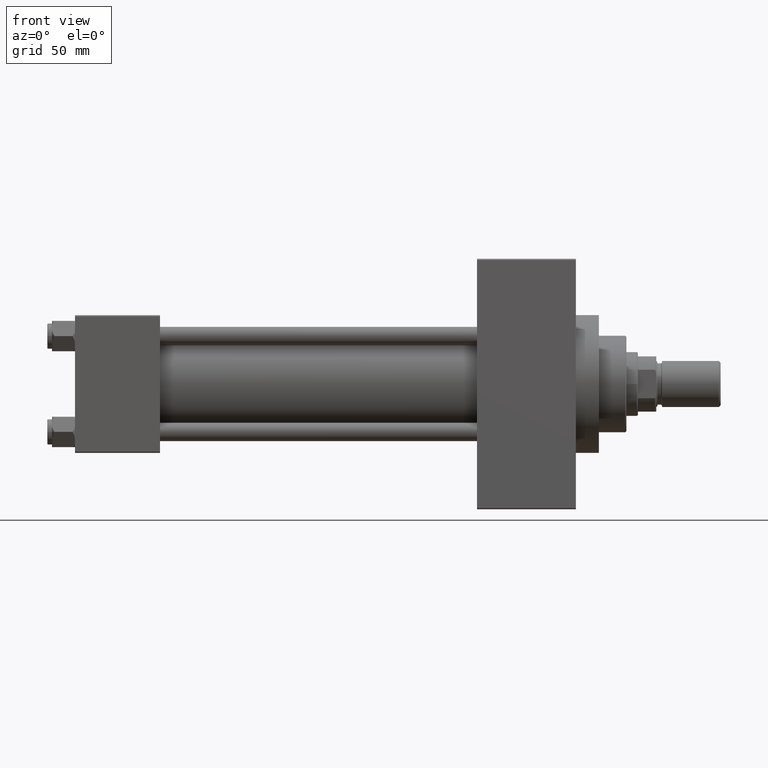
[diagram: clean part render]
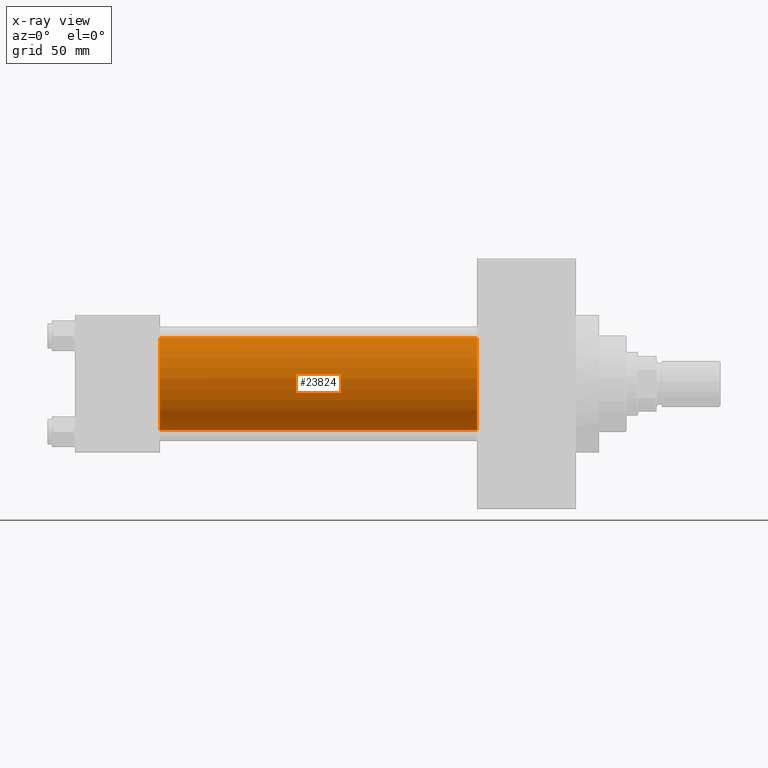
[diagram: x-ray — body ghosted, one internal face saturated and labeled with its STEP entity id]
A machine part, front view, then the same camera in x-ray: the body is ghosted and one INTERNAL B-rep face — a face not visible from any outside direction — is saturated and labeled: STEP entity #23824.
In plain terms, the highlighted cylindrical surface (partial cylindrical patch) has radius 20 mm, axis along (-1, -0, -0).
Its self-contained STEP definition (entity closure, byte-faithful):
#1944 = ORIENTED_EDGE ( 'NONE', *, *, #2814, .F. ) ;
#2814 = EDGE_CURVE ( 'NONE', #18475, #27763, #36919, .T. ) ;
#4686 = CARTESIAN_POINT ( 'NONE',  ( 175.0000000000000284, -2.602085213965210642E-15, 20.00000000000000000 ) ) ;
#6768 = EDGE_CURVE ( 'NONE', #35752, #27763, #11559, .T. ) ;
#7972 = CARTESIAN_POINT ( 'NONE',  ( 175.0000000000000284, -2.602085213965210642E-15, 0.000000000000000000 ) ) ;
#10857 = CARTESIAN_POINT ( 'NONE',  ( 37.00000000000000000, -2.602085213965210642E-15, 20.00000000000000000 ) ) ;
#11559 = LINE ( 'NONE', #40503, #17698 ) ;
#11671 = LINE ( 'NONE', #4686, #36539 ) ;
#14293 = DIRECTION ( 'NONE',  ( 0.000000000000000000, 0.000000000000000000, -1.000000000000000000 ) ) ;
#14488 = DIRECTION ( 'NONE',  ( 1.000000000000000000, 0.000000000000000000, 0.000000000000000000 ) ) ;
#16007 = DIRECTION ( 'NONE',  ( -1.000000000000000000, -0.000000000000000000, -0.000000000000000000 ) ) ;
#17126 = EDGE_CURVE ( 'NONE', #17949, #18475, #11671, .T. ) ;
#17698 = VECTOR ( 'NONE', #21937, 1000.000000000000000 ) ;
#17949 = VERTEX_POINT ( 'NONE', #27115 ) ;
#18341 = CARTESIAN_POINT ( 'NONE',  ( 175.0000000000000284, -1.527916156705042519E-16, -20.00000000000000000 ) ) ;
#18475 = VERTEX_POINT ( 'NONE', #10857 ) ;
#19590 = ORIENTED_EDGE ( 'NONE', *, *, #35841, .T. ) ;
#21937 = DIRECTION ( 'NONE',  ( -1.000000000000000000, -0.000000000000000000, -0.000000000000000000 ) ) ;
#22924 = AXIS2_PLACEMENT_3D ( 'NONE', #32502, #28885, #43597 ) ;
#23824 = ADVANCED_FACE ( 'NONE', ( #39968 ), #43360, .F. ) ;
#24466 = EDGE_LOOP ( 'NONE', ( #19590, #30465, #1944, #43989 ) ) ;
#25387 = DIRECTION ( 'NONE',  ( 1.000000000000000000, 0.000000000000000000, 0.000000000000000000 ) ) ;
#27115 = CARTESIAN_POINT ( 'NONE',  ( 175.0000000000000284, -2.602085213965210642E-15, 20.00000000000000000 ) ) ;
#27763 = VERTEX_POINT ( 'NONE', #38738 ) ;
#28779 = CARTESIAN_POINT ( 'NONE',  ( 37.00000000000000000, -2.602085213965210642E-15, 0.000000000000000000 ) ) ;
#28885 = DIRECTION ( 'NONE',  ( -1.000000000000000000, -0.000000000000000000, -0.000000000000000000 ) ) ;
#29371 = AXIS2_PLACEMENT_3D ( 'NONE', #7972, #14488, #40291 ) ;
#30465 = ORIENTED_EDGE ( 'NONE', *, *, #6768, .T. ) ;
#30920 = CIRCLE ( 'NONE', #29371, 20.00000000000000000 ) ;
#32502 = CARTESIAN_POINT ( 'NONE',  ( 175.0000000000000284, -2.602085213965210642E-15, 0.000000000000000000 ) ) ;
#35752 = VERTEX_POINT ( 'NONE', #18341 ) ;
#35841 = EDGE_CURVE ( 'NONE', #17949, #35752, #30920, .T. ) ;
#36157 = AXIS2_PLACEMENT_3D ( 'NONE', #28779, #25387, #14293 ) ;
#36539 = VECTOR ( 'NONE', #16007, 1000.000000000000000 ) ;
#36919 = CIRCLE ( 'NONE', #36157, 20.00000000000000000 ) ;
#38738 = CARTESIAN_POINT ( 'NONE',  ( 37.00000000000000000, -1.527916156705042519E-16, -20.00000000000000000 ) ) ;
#39968 = FACE_OUTER_BOUND ( 'NONE', #24466, .T. ) ;
#40291 = DIRECTION ( 'NONE',  ( 0.000000000000000000, 0.000000000000000000, -1.000000000000000000 ) ) ;
#40503 = CARTESIAN_POINT ( 'NONE',  ( 175.0000000000000284, -1.527916156705042519E-16, -20.00000000000000000 ) ) ;
#43360 = CYLINDRICAL_SURFACE ( 'NONE', #22924, 20.00000000000000000 ) ;
#43597 = DIRECTION ( 'NONE',  ( 0.000000000000000000, 0.000000000000000000, 1.000000000000000000 ) ) ;
#43989 = ORIENTED_EDGE ( 'NONE', *, *, #17126, .F. ) ;